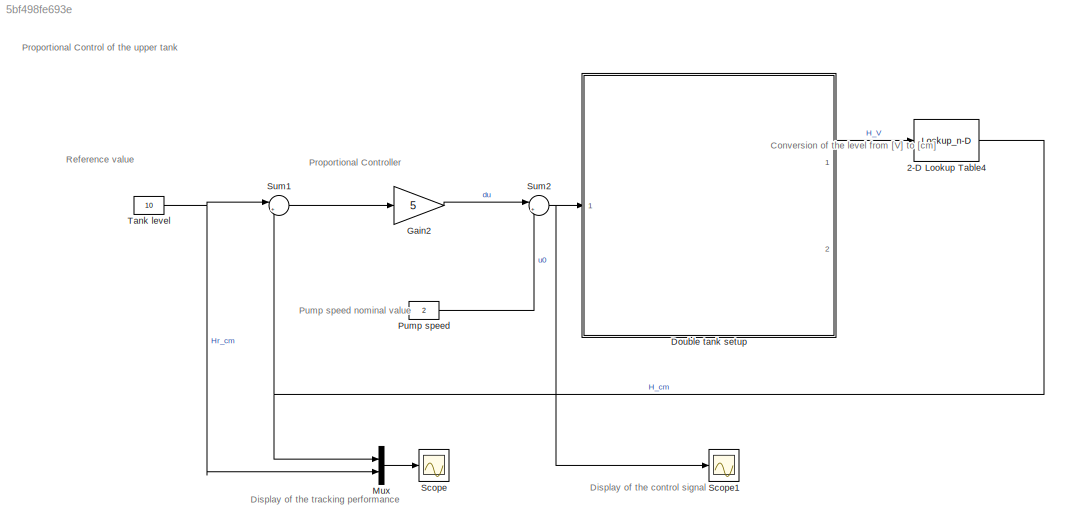
MODEL slx_5bf498fe693e
KIND model
CONFIG AbsTol = auto
CONFIG EnableMultiTasking = on
CONFIG FixedStep = auto
CONFIG MaxStep = auto
CONFIG MinStep = auto
CONFIG RelTol = 1e-3
CONFIG SampleTimeConstraint = Unconstrained
CONFIG Solver = ode5
CONFIG SolverName = ode5
CONFIG StartTime = 0.0
CONFIG StopTime = inf
BLOCK [Lookup_n-D] 2-D Lookup Table4
  BreakpointsForDimension1 = x
  BreakpointsForDimension2 = [1:3]
  NumberOfTableDimensions = 1
  Ports = [1, 1]
  RndMeth = Simplest
  Table = y
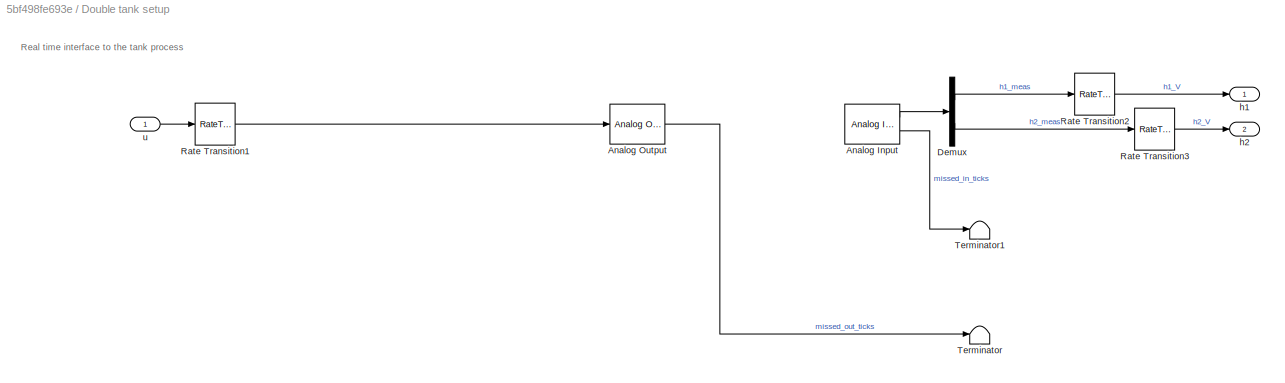
BLOCK [SubSystem] Double tank setup
  AncestorBlock = R0002E_lib/Double tank setup
  Ports = [1, 2]
  RequestExecContextInheritance = off
  StopFcn = chn =get_param(gcb,'u_ch');                          \ns = daq.createSession('ni');                         \nchannel = ['ao',chn];                                \ns.addAnalogOutputChannel('Dev1', channel, 'Voltage');\nx = zeros(5,1);                                      \ns.queueOutputData(x);                                \nlh = s.addlistener('DataRequired', ...               \n@(src,event) src.queue...<+472ch>
  Variant = off
BLOCK [Reference] Double tank setup/Analog Input  REF=rtwinlib/Analog Input
  AttributesFormatString = National Instruments\nPCI-6024E [auto]
  Ports = [0, 2]
  SourceBlock = rtwinlib/Analog Input
  SourceType = Simulink Desktop Real-Time Analog Input
BLOCK [Reference] Double tank setup/Analog Output  REF=rtwinlib/Analog Output
  AttributesFormatString = National Instruments\nPCI-6024E [auto]
  Ports = [1, 1]
  SourceBlock = rtwinlib/Analog Output
  SourceType = Simulink Desktop Real-Time Analog Output
BLOCK [Demux] Double tank setup/Demux
  DisplayOption = bar
  Outputs = 2
  Ports = [1, 2]
BLOCK [RateTransition] Double tank setup/Rate Transition1
  OutPortSampleTime = ts
BLOCK [RateTransition] Double tank setup/Rate Transition2
BLOCK [RateTransition] Double tank setup/Rate Transition3
BLOCK [Terminator] Double tank setup/Terminator
BLOCK [Terminator] Double tank setup/Terminator1
BLOCK [Outport] Double tank setup/h1
  IconDisplay = Port number
BLOCK [Outport] Double tank setup/h2
  IconDisplay = Port number
  Port = 2
BLOCK [Inport] Double tank setup/u
  IconDisplay = Port number
BLOCK [Gain] Gain2
  Gain = 5
  OutDataTypeStr = Inherit: Inherit via internal rule
  ParamDataTypeStr = Inherit: Inherit via internal rule
  SaturateOnIntegerOverflow = off
BLOCK [Mux] Mux
  DisplayOption = bar
  Inputs = 2
  Ports = [2, 1]
BLOCK [Constant] Pump speed
  Value = 2
BLOCK [Scope] Scope
  NumInputPorts = 1
  Ports = [1]
  ScopeSpecificationString = Simulink.scopes.TimeScopeBlockCfg('CurrentConfiguration', extmgr.ConfigurationSet(extmgr.Configuration('Core','General UI',true),extmgr.Configuration('Core','Source UI',true),extmgr.Configuration('Sources','WiredSimulink',true,'SampleTime','0.1','DataLoggingLimitDataPoints',true,'DataLoggingSaveFormat','Array','DataLoggingDecimation','1','DataLoggingDecimateData',true),extmgr.Configuration('Visual...<+1697ch>
BLOCK [Scope] Scope1
  NumInputPorts = 1
  Ports = [1]
  ScopeSpecificationString = Simulink.scopes.TimeScopeBlockCfg('CurrentConfiguration', extmgr.ConfigurationSet(extmgr.Configuration('Core','General UI',true),extmgr.Configuration('Core','Source UI',true),extmgr.Configuration('Sources','WiredSimulink',true,'DataLoggingVariableName','ScopeData1','SampleTime','0.1','DataLoggingLimitDataPoints',true,'DataLoggingSaveFormat','Array','DataLoggingDecimation','1','DataLoggingDecimateD...<+1738ch>
BLOCK [Sum] Sum1
  IconShape = round
  InputSameDT = off
  Inputs = |+-
  OutDataTypeStr = Inherit: Inherit via internal rule
  Ports = [2, 1]
  SaturateOnIntegerOverflow = off
BLOCK [Sum] Sum2
  IconShape = round
  InputSameDT = off
  Inputs = |++
  OutDataTypeStr = Inherit: Inherit via internal rule
  Ports = [2, 1]
  SaturateOnIntegerOverflow = off
BLOCK [Constant] Tank level
  Value = 10
ANNOTATION (root): Conversion of the level from [V] to [cm]
ANNOTATION (root): Display of the control signal
ANNOTATION (root): Display of the tracking performance
ANNOTATION (root): Pump speed nominal value
ANNOTATION (root): Proportional Control of the upper tank
ANNOTATION (root): Proportional Controller
ANNOTATION (root): Reference value
ANNOTATION Double tank setup: Real time interface to the tank process
NET 2-D Lookup Table4:1 -> Mux:1, Sum1:2
LINE Double tank setup:1 -> 2-D Lookup Table4:1
LINE Gain2:1 -> Sum2:1
LINE Mux:1 -> Scope:1
LINE Pump speed:1 -> Sum2:2
LINE Sum1:1 -> Gain2:1
NET Sum2:1 -> Double tank setup:1, Scope1:1
NET Tank level:1 -> Mux:2, Sum1:1
note: NET lines group one-source signal fan-out (src -> all destinations, sorted); 1:1 wires keep LINE
